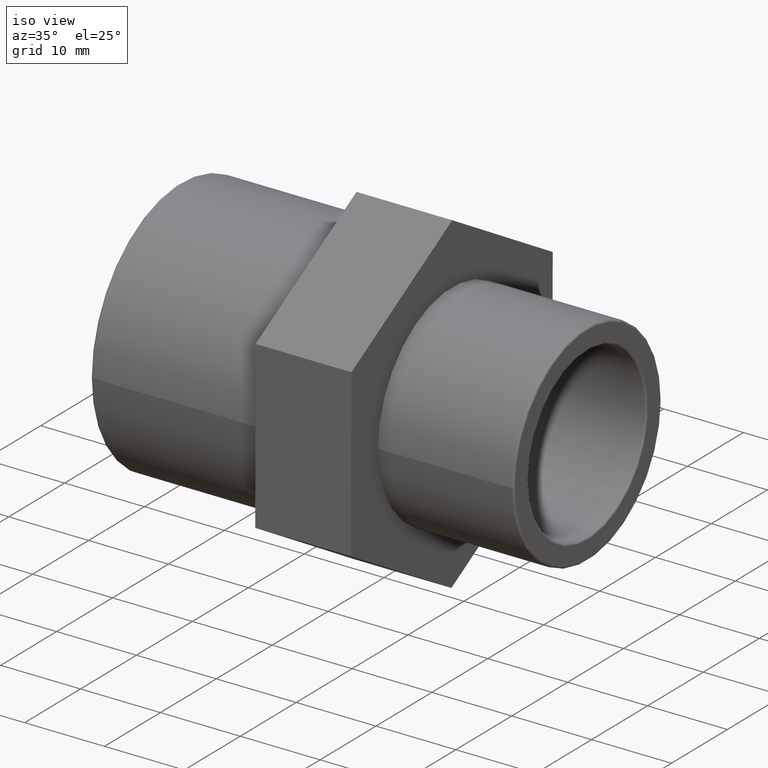
[diagram: clean part render]
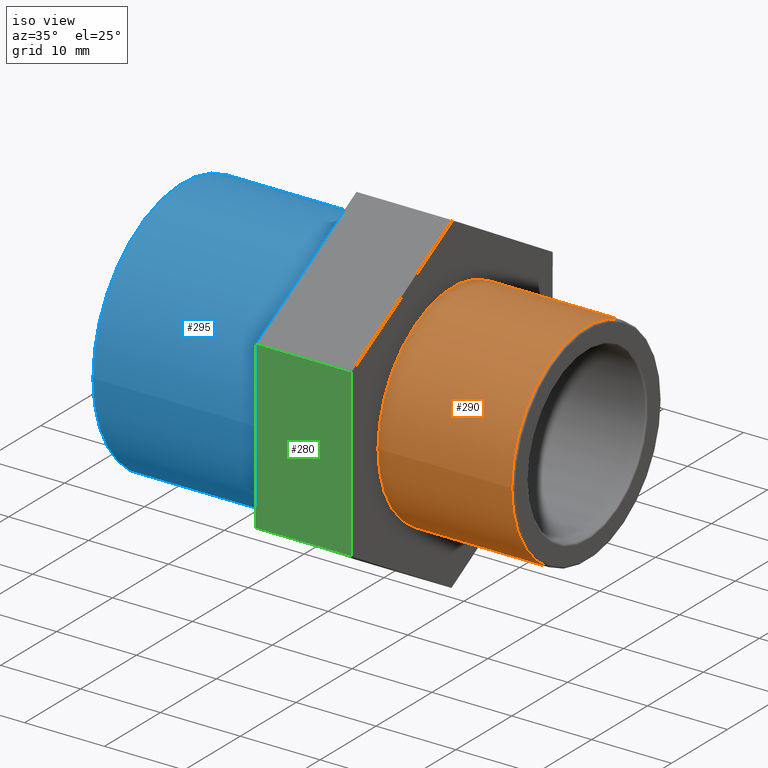
[diagram: same view with three faces highlighted in distinct colors, each labeled with its STEP entity id]
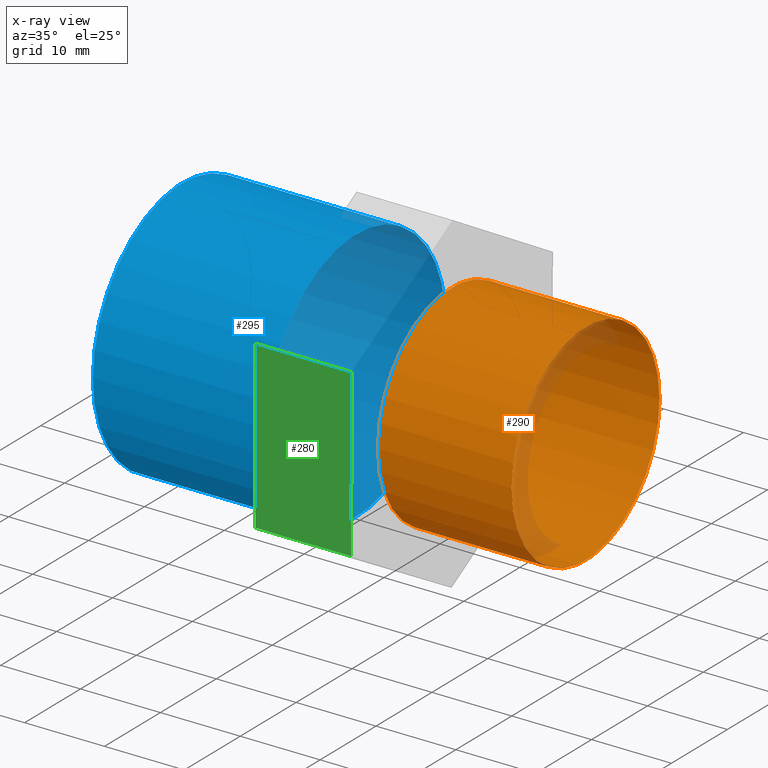
[diagram: x-ray of the same camera — body ghosted, the three highlighted faces saturated]
A machine part, iso view with three faces highlighted in distinct colors.
The next image is the same camera in x-ray (body ghosted, the three faces saturated) — at least one of them is partly hidden behind the body in this view.
Their STEP definitions:

[orange] entity #290 — the highlighted cylindrical surface (bore or boss wall) has radius 13.2205 mm, axis along (-1, -0, 0).
#16=CYLINDRICAL_SURFACE('',#318,13.2205);
#24=FACE_BOUND('',#89,.T.);
#39=CIRCLE('',#317,13.2205);
#40=CIRCLE('',#319,13.2205);
#63=FACE_OUTER_BOUND('',#88,.T.);
#88=EDGE_LOOP('',(#236));
#89=EDGE_LOOP('',(#237));
#162=VERTEX_POINT('',#477);
#163=VERTEX_POINT('',#480);
#194=EDGE_CURVE('',#162,#162,#39,.T.);
#195=EDGE_CURVE('',#163,#163,#40,.T.);
#236=ORIENTED_EDGE('',*,*,#195,.F.);
#237=ORIENTED_EDGE('',*,*,#194,.F.);
#290=ADVANCED_FACE('',(#63,#24),#16,.T.);
#317=AXIS2_PLACEMENT_3D('',#478,#386,#387);
#318=AXIS2_PLACEMENT_3D('',#479,#388,#389);
#319=AXIS2_PLACEMENT_3D('',#481,#390,#391);
#386=DIRECTION('center_axis',(1.,6.73555739531044E-16,0.));
#387=DIRECTION('ref_axis',(-6.74443377067492E-16,1.,6.12323399573677E-17));
#388=DIRECTION('center_axis',(-1.,-6.73555739531044E-16,0.));
#389=DIRECTION('ref_axis',(7.105427357601E-16,-1.,0.));
#390=DIRECTION('center_axis',(-1.,-6.73555739531044E-16,0.));
#391=DIRECTION('ref_axis',(0.,0.,1.));
#477=CARTESIAN_POINT('',(25.25,-13.2205,-2.42856645121914E-15));
#478=CARTESIAN_POINT('Origin',(25.25,2.16915564298975E-14,0.));
#479=CARTESIAN_POINT('Origin',(17.,1.61347215787664E-14,0.));
#480=CARTESIAN_POINT('',(8.50000000000002,-13.2205,0.));
#481=CARTESIAN_POINT('Origin',(8.50000000000002,1.04094977927525E-14,0.));

[blue] entity #295 — the highlighted cylindrical surface (bore or boss wall) has radius 16 mm, axis along (-1, -0, 0).
#18=CYLINDRICAL_SURFACE('',#329,16.);
#29=FACE_BOUND('',#99,.T.);
#45=CIRCLE('',#328,16.);
#46=CIRCLE('',#330,16.);
#68=FACE_OUTER_BOUND('',#98,.T.);
#98=EDGE_LOOP('',(#246));
#99=EDGE_LOOP('',(#247));
#168=VERTEX_POINT('',#494);
#169=VERTEX_POINT('',#497);
#200=EDGE_CURVE('',#168,#168,#45,.T.);
#201=EDGE_CURVE('',#169,#169,#46,.T.);
#246=ORIENTED_EDGE('',*,*,#201,.T.);
#247=ORIENTED_EDGE('',*,*,#200,.F.);
#295=ADVANCED_FACE('',(#68,#29),#18,.T.);
#328=AXIS2_PLACEMENT_3D('',#495,#408,#409);
#329=AXIS2_PLACEMENT_3D('',#496,#410,#411);
#330=AXIS2_PLACEMENT_3D('',#498,#412,#413);
#408=DIRECTION('center_axis',(-1.,-6.73555739531044E-16,0.));
#409=DIRECTION('ref_axis',(-6.74373751285984E-16,1.,6.12323399573677E-17));
#410=DIRECTION('center_axis',(-1.,-6.73555739531044E-16,0.));
#411=DIRECTION('ref_axis',(7.105427357601E-16,-1.,0.));
#412=DIRECTION('center_axis',(-1.,-6.73555739531044E-16,0.));
#413=DIRECTION('ref_axis',(0.,0.,1.));
#494=CARTESIAN_POINT('',(-25.25,-16.,9.79717439317883E-16));
#495=CARTESIAN_POINT('Origin',(-25.25,-1.23230084164202E-14,0.));
#496=CARTESIAN_POINT('Origin',(-14.5,-5.08228421646152E-15,0.));
#497=CARTESIAN_POINT('',(-3.5,-16.,0.));
#498=CARTESIAN_POINT('Origin',(-3.50000000000001,2.32682891837996E-15,0.));

[green] entity #280 — the highlighted planar face has unit normal (0, -1, 0.0036).
#53=FACE_OUTER_BOUND('',#74,.T.);
#74=EDGE_LOOP('',(#204,#205,#206,#207));
#110=LINE('',#432,#128);
#111=LINE('',#434,#129);
#112=LINE('',#436,#130);
#113=LINE('',#437,#131);
#128=VECTOR('',#342,20.7846096908266);
#129=VECTOR('',#343,12.);
#130=VECTOR('',#344,20.7846096908266);
#131=VECTOR('',#345,12.);
#146=VERTEX_POINT('',#430);
#147=VERTEX_POINT('',#431);
#148=VERTEX_POINT('',#433);
#149=VERTEX_POINT('',#435);
#172=EDGE_CURVE('',#146,#147,#110,.T.);
#173=EDGE_CURVE('',#148,#147,#111,.T.);
#174=EDGE_CURVE('',#148,#149,#112,.T.);
#175=EDGE_CURVE('',#149,#146,#113,.T.);
#204=ORIENTED_EDGE('',*,*,#172,.T.);
#205=ORIENTED_EDGE('',*,*,#173,.F.);
#206=ORIENTED_EDGE('',*,*,#174,.T.);
#207=ORIENTED_EDGE('',*,*,#175,.T.);
#268=PLANE('',#303);
#280=ADVANCED_FACE('',(#53),#268,.T.);
#303=AXIS2_PLACEMENT_3D('',#429,#340,#341);
#340=DIRECTION('center_axis',(6.16786529508788E-16,-0.999993450406666,0.0036192739286133));
#341=DIRECTION('ref_axis',(0.,-0.00361927392861325,-0.999993450406666));
#342=DIRECTION('',(-2.43778272755256E-18,0.0036192739286133,0.999993450406666));
#343=DIRECTION('',(1.,6.16790569236188E-16,0.));
#344=DIRECTION('',(2.43778272755256E-18,-0.0036192739286133,-0.999993450406666));
#345=DIRECTION('',(1.,6.16790569236188E-16,0.));
#429=CARTESIAN_POINT('Origin',(-3.49999999999999,-17.9622695093348,10.4573837107578));
#430=CARTESIAN_POINT('',(8.50000000000002,-18.0374947053052,-10.3270898493277));
#431=CARTESIAN_POINT('',(8.50000000000002,-17.9622695093348,10.4573837107578));
#432=CARTESIAN_POINT('',(8.50000000000002,-17.9810758083274,5.26126532073641));
#433=CARTESIAN_POINT('',(-3.49999999999999,-17.9622695093348,10.4573837107578));
#434=CARTESIAN_POINT('',(-3.49999999999999,-17.9622695093348,10.4573837107578));
#435=CARTESIAN_POINT('',(-3.49999999999999,-18.0374947053052,-10.3270898493277));
#436=CARTESIAN_POINT('',(-3.49999999999999,-17.9622695093348,10.4573837107578));
#437=CARTESIAN_POINT('',(-3.49999999999999,-18.0374947053052,-10.3270898493277));